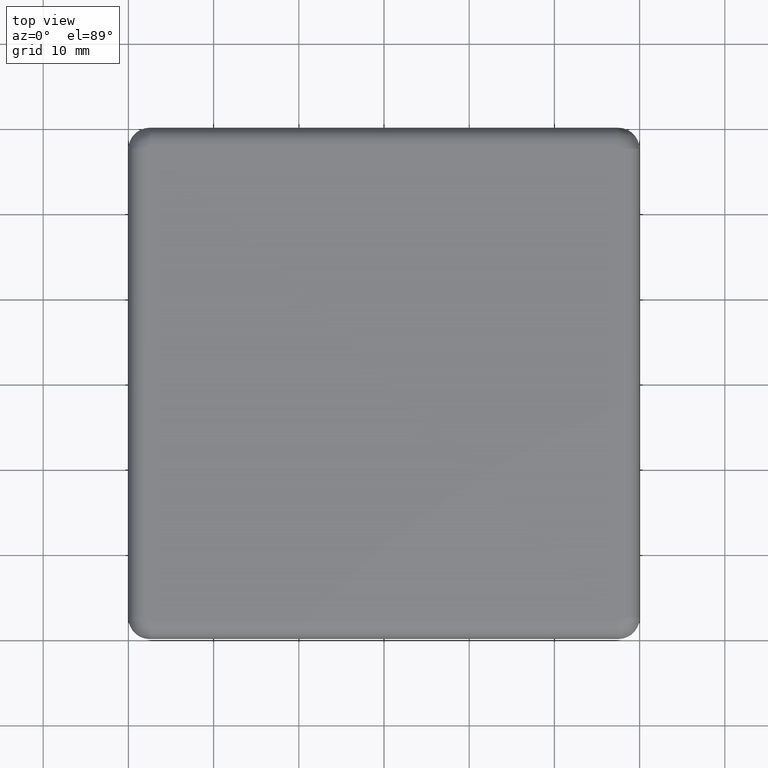
[diagram: clean part render]
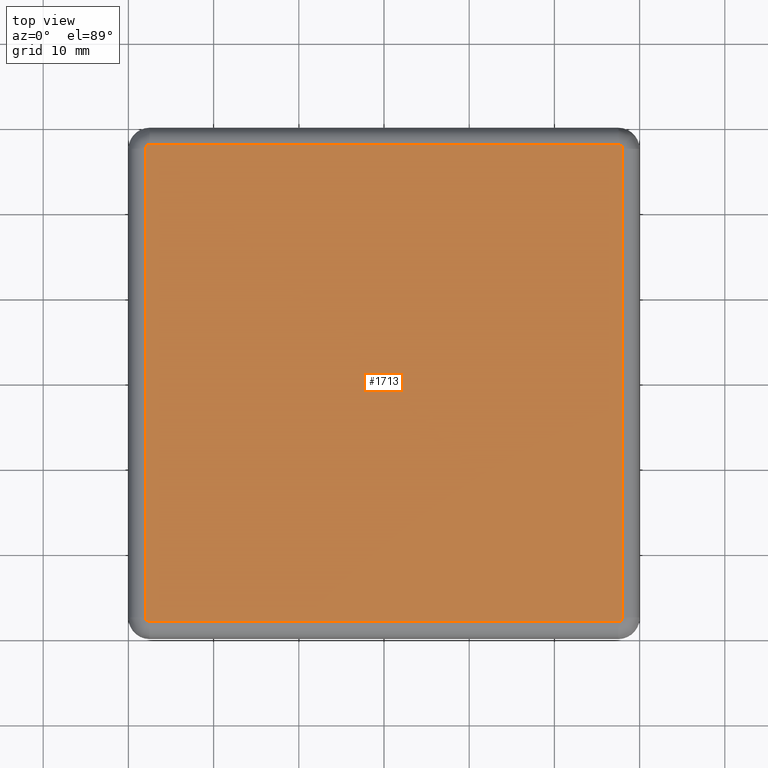
[diagram: same view with one face highlighted and labeled with its STEP entity id]
A machine part, top view. The second image highlights one B-rep face of the part: STEP entity #1713.
In plain terms, the highlighted planar face has unit normal (0, 0, -1).
Its self-contained STEP definition (entity closure, byte-faithful):
#1638=CARTESIAN_POINT('',(30.799999999999994,-0.800000000000004,3.000000000000004));
#1639=DIRECTION('',(0.0,0.0,-1.0));
#1640=DIRECTION('',(-1.0,0.0,0.0));
#1641=AXIS2_PLACEMENT_3D('',#1638,#1639,#1640);
#1642=PLANE('',#1641);
#1643=CARTESIAN_POINT('',(27.999999999999996,57.500000000000000,3.000000000000004));
#1644=VERTEX_POINT('',#1643);
#1645=CARTESIAN_POINT('',(27.499999999999996,57.999999999999986,3.000000000000004));
#1646=VERTEX_POINT('',#1645);
#1647=CARTESIAN_POINT('',(27.499999999999996,57.500000000000000,3.000000000000004));
#1648=DIRECTION('',(-1.224647E-016,0.0,1.0));
#1649=DIRECTION('',(-1.0,0.0,-1.224647E-016));
#1650=AXIS2_PLACEMENT_3D('',#1647,#1648,#1649);
#1651=CIRCLE('',#1650,0.500000000000001);
#1652=EDGE_CURVE('',#1644,#1646,#1651,.T.);
#1653=ORIENTED_EDGE('',*,*,#1652,.T.);
#1654=CARTESIAN_POINT('',(-27.500000000000000,57.999999999999986,2.999999999999997));
#1655=VERTEX_POINT('',#1654);
#1656=CARTESIAN_POINT('',(27.499999999999996,57.999999999999986,3.000000000000004));
#1657=DIRECTION('',(-1.0,0.0,0.0));
#1658=VECTOR('',#1657,54.999999999999993);
#1659=LINE('',#1656,#1658);
#1660=EDGE_CURVE('',#1646,#1655,#1659,.T.);
#1661=ORIENTED_EDGE('',*,*,#1660,.T.);
#1662=CARTESIAN_POINT('',(-28.0,57.500000000000000,2.999999999999997));
#1663=VERTEX_POINT('',#1662);
#1664=CARTESIAN_POINT('',(-27.500000000000000,57.500000000000000,2.999999999999997));
#1665=DIRECTION('',(-1.224647E-016,0.0,1.0));
#1666=DIRECTION('',(-1.0,0.0,-1.224647E-016));
#1667=AXIS2_PLACEMENT_3D('',#1664,#1665,#1666);
#1668=CIRCLE('',#1667,0.500000000000001);
#1669=EDGE_CURVE('',#1655,#1663,#1668,.T.);
#1670=ORIENTED_EDGE('',*,*,#1669,.T.);
#1671=CARTESIAN_POINT('',(-28.0,2.500000000000000,2.999999999999997));
#1672=VERTEX_POINT('',#1671);
#1673=CARTESIAN_POINT('',(-28.0,57.500000000000000,2.999999999999997));
#1674=DIRECTION('',(0.0,-1.0,0.0));
#1675=VECTOR('',#1674,55.0);
#1676=LINE('',#1673,#1675);
#1677=EDGE_CURVE('',#1663,#1672,#1676,.T.);
#1678=ORIENTED_EDGE('',*,*,#1677,.T.);
#1679=CARTESIAN_POINT('',(-27.500000000000000,2.0,2.999999999999997));
#1680=VERTEX_POINT('',#1679);
#1681=CARTESIAN_POINT('',(-27.500000000000000,2.500000000000000,2.999999999999997));
#1682=DIRECTION('',(-1.224647E-016,0.0,1.0));
#1683=DIRECTION('',(-1.0,0.0,-1.224647E-016));
#1684=AXIS2_PLACEMENT_3D('',#1681,#1682,#1683);
#1685=CIRCLE('',#1684,0.500000000000001);
#1686=EDGE_CURVE('',#1672,#1680,#1685,.T.);
#1687=ORIENTED_EDGE('',*,*,#1686,.T.);
#1688=CARTESIAN_POINT('',(27.499999999999996,2.0,3.000000000000004));
#1689=VERTEX_POINT('',#1688);
#1690=CARTESIAN_POINT('',(-27.500000000000000,2.0,2.999999999999997));
#1691=DIRECTION('',(1.0,0.0,0.0));
#1692=VECTOR('',#1691,54.999999999999993);
#1693=LINE('',#1690,#1692);
#1694=EDGE_CURVE('',#1680,#1689,#1693,.T.);
#1695=ORIENTED_EDGE('',*,*,#1694,.T.);
#1696=CARTESIAN_POINT('',(27.999999999999996,2.500000000000000,3.000000000000004));
#1697=VERTEX_POINT('',#1696);
#1698=CARTESIAN_POINT('',(27.499999999999996,2.500000000000000,3.000000000000004));
#1699=DIRECTION('',(-1.224647E-016,0.0,1.0));
#1700=DIRECTION('',(-1.0,0.0,-1.224647E-016));
#1701=AXIS2_PLACEMENT_3D('',#1698,#1699,#1700);
#1702=CIRCLE('',#1701,0.500000000000001);
#1703=EDGE_CURVE('',#1689,#1697,#1702,.T.);
#1704=ORIENTED_EDGE('',*,*,#1703,.T.);
#1705=CARTESIAN_POINT('',(27.999999999999996,2.499999999999993,3.000000000000004));
#1706=DIRECTION('',(0.0,1.0,0.0));
#1707=VECTOR('',#1706,55.0);
#1708=LINE('',#1705,#1707);
#1709=EDGE_CURVE('',#1697,#1644,#1708,.T.);
#1710=ORIENTED_EDGE('',*,*,#1709,.T.);
#1711=EDGE_LOOP('',(#1653,#1661,#1670,#1678,#1687,#1695,#1704,#1710));
#1712=FACE_OUTER_BOUND('',#1711,.T.);
#1713=ADVANCED_FACE('',(#1712),#1642,.F.);